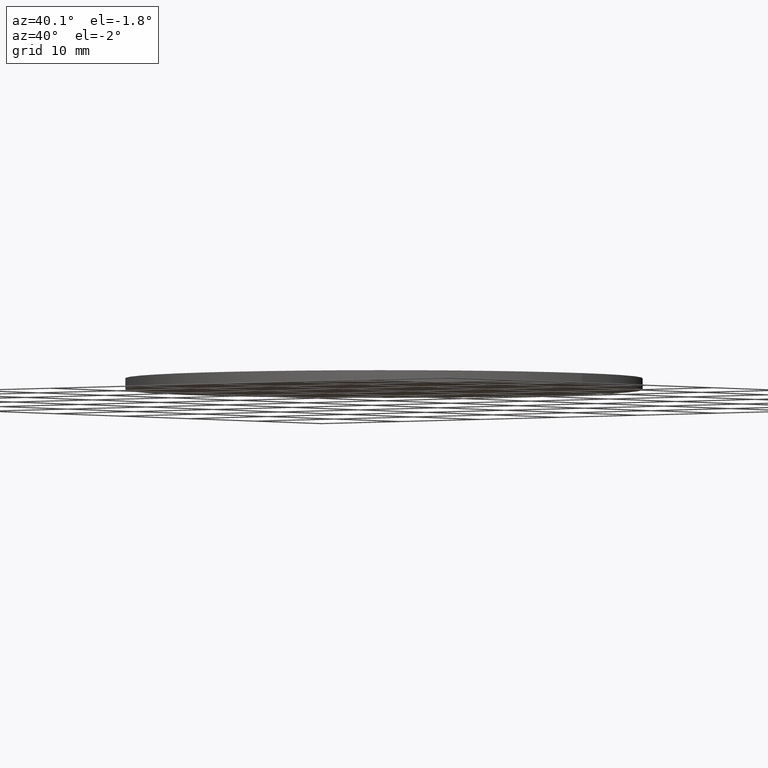
[diagram: clean part render]
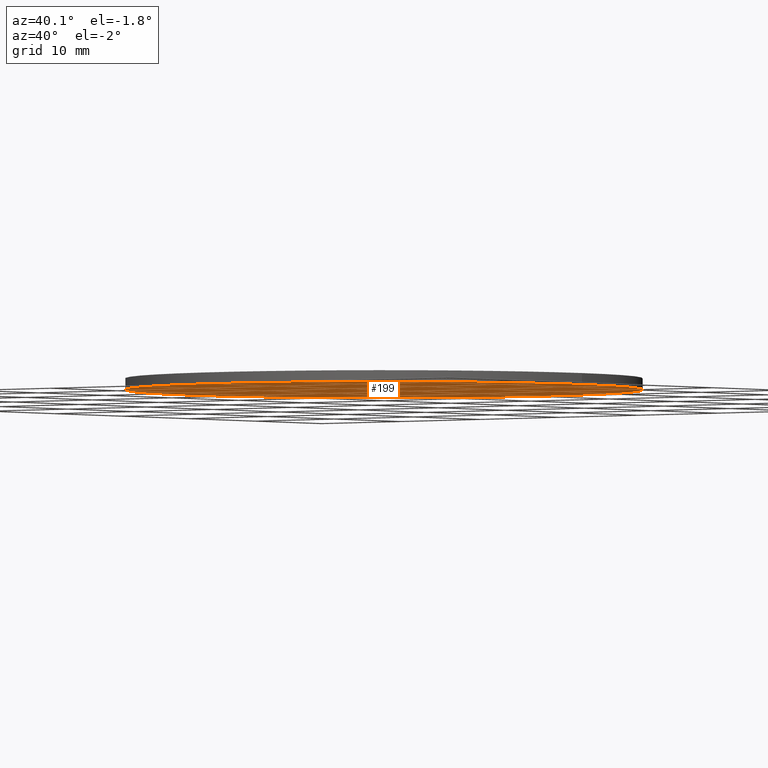
[diagram: same view with one face highlighted and labeled with its STEP entity id]
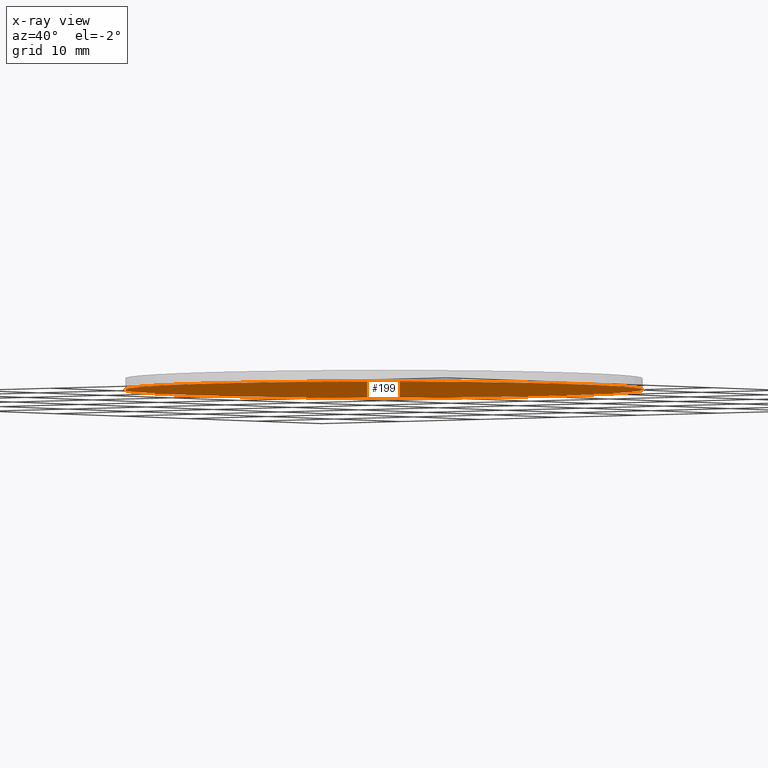
[diagram: x-ray of the same camera — body ghosted, the highlighted face saturated]
A machine part, auxiliary view. The second image highlights one B-rep face of the part: STEP entity #199.
The next image is the same camera in x-ray: the body ghosted, the highlighted face saturated — about 0% of this face is hidden behind the body in this view.
In plain terms, the highlighted planar face has unit normal (0, 0, 1).
Its self-contained STEP definition (entity closure, byte-faithful):
#27 = CARTESIAN_POINT ( 'NONE',  ( 0.0000000000000000000, 0.0000000000000000000, 0.0000000000000000000 ) ) ;
#38 = AXIS2_PLACEMENT_3D ( 'NONE', #27, #183, #226 ) ;
#41 = CARTESIAN_POINT ( 'NONE',  ( -25.00000000000000000, 0.0000000000000000000, 0.0000000000000000000 ) ) ;
#43 = PLANE ( 'NONE',  #38 ) ;
#50 = EDGE_LOOP ( 'NONE', ( #242, #248 ) ) ;
#84 = CARTESIAN_POINT ( 'NONE',  ( 0.0000000000000000000, 0.0000000000000000000, 0.0000000000000000000 ) ) ;
#88 = DIRECTION ( 'NONE',  ( 1.000000000000000000, 0.0000000000000000000, 0.0000000000000000000 ) ) ;
#89 = AXIS2_PLACEMENT_3D ( 'NONE', #145, #222, #88 ) ;
#92 = FACE_OUTER_BOUND ( 'NONE', #50, .T. ) ;
#96 = CIRCLE ( 'NONE', #89, 25.00000000000000000 ) ;
#124 = VERTEX_POINT ( 'NONE', #243 ) ;
#137 = CIRCLE ( 'NONE', #155, 25.00000000000000000 ) ;
#145 = CARTESIAN_POINT ( 'NONE',  ( 0.0000000000000000000, 0.0000000000000000000, 0.0000000000000000000 ) ) ;
#150 = EDGE_CURVE ( 'NONE', #124, #214, #137, .T. ) ;
#155 = AXIS2_PLACEMENT_3D ( 'NONE', #84, #165, #208 ) ;
#165 = DIRECTION ( 'NONE',  ( 0.0000000000000000000, 0.0000000000000000000, 1.000000000000000000 ) ) ;
#183 = DIRECTION ( 'NONE',  ( 0.0000000000000000000, 0.0000000000000000000, 1.000000000000000000 ) ) ;
#199 = ADVANCED_FACE ( 'NONE', ( #92 ), #43, .F. ) ;
#208 = DIRECTION ( 'NONE',  ( 1.000000000000000000, 0.0000000000000000000, 0.0000000000000000000 ) ) ;
#214 = VERTEX_POINT ( 'NONE', #41 ) ;
#221 = EDGE_CURVE ( 'NONE', #214, #124, #96, .T. ) ;
#222 = DIRECTION ( 'NONE',  ( 0.0000000000000000000, 0.0000000000000000000, 1.000000000000000000 ) ) ;
#226 = DIRECTION ( 'NONE',  ( 1.000000000000000000, 0.0000000000000000000, -0.0000000000000000000 ) ) ;
#242 = ORIENTED_EDGE ( 'NONE', *, *, #221, .F. ) ;
#243 = CARTESIAN_POINT ( 'NONE',  ( 25.00000000000000000, 3.061616997868383000E-015, 0.0000000000000000000 ) ) ;
#248 = ORIENTED_EDGE ( 'NONE', *, *, #150, .F. ) ;